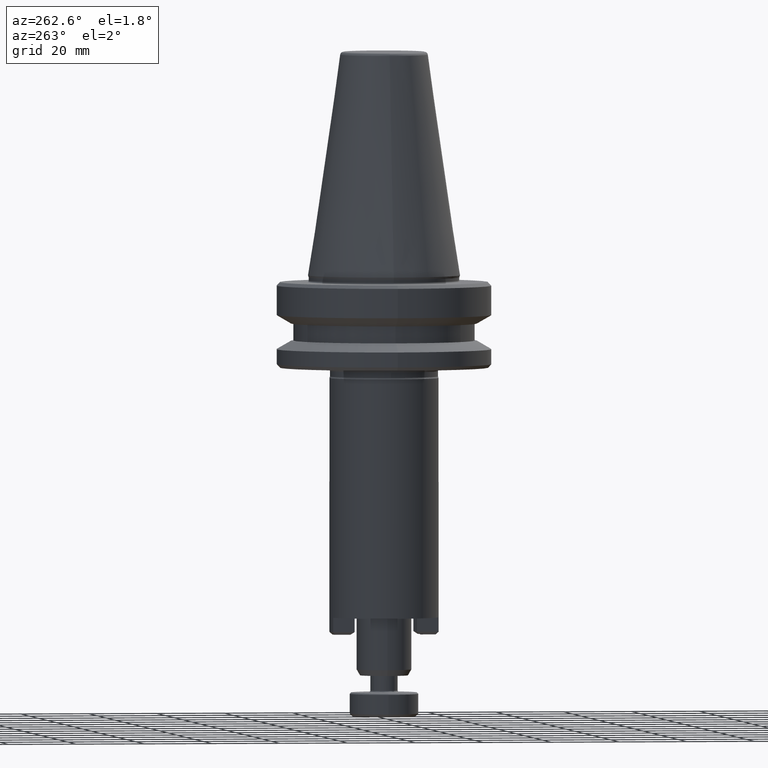
[diagram: clean part render]
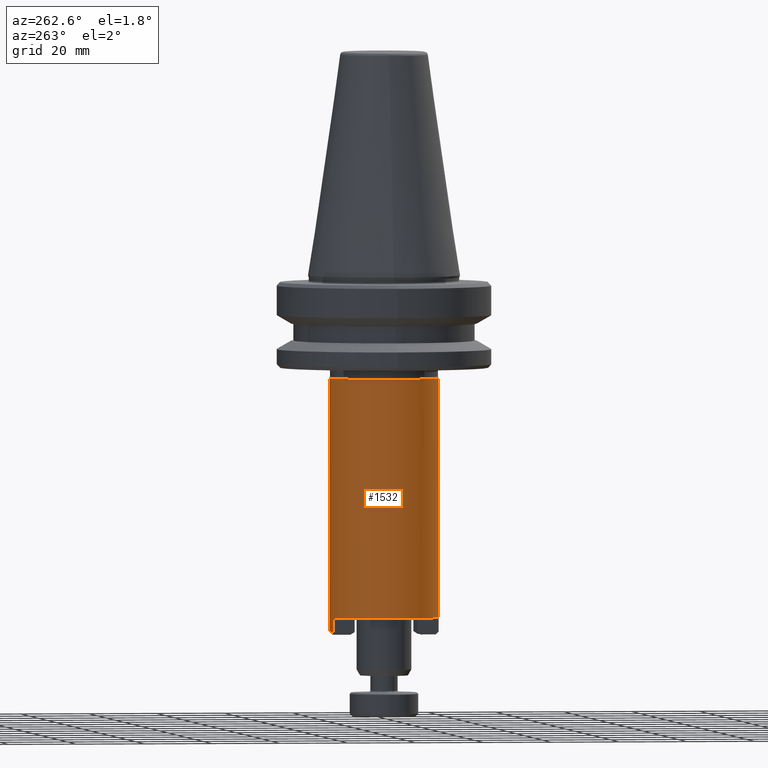
[diagram: same view with one face highlighted and labeled with its STEP entity id]
A machine part, auxiliary view. The second image highlights one B-rep face of the part: STEP entity #1532.
In plain terms, the highlighted cylindrical surface (partial cylindrical patch) has radius 16 mm, axis along (0, -0, 1).
Its self-contained STEP definition (entity closure, byte-faithful):
#3 = AXIS2_PLACEMENT_3D ( 'NONE', #630, #1685, #1857 ) ;
#37 = DIRECTION ( 'NONE',  ( 0.0000000000000000000, -2.710505431213761100E-017, 1.000000000000000000 ) ) ;
#129 = DIRECTION ( 'NONE',  ( 0.0000000000000000000, -2.710505431213761100E-017, 1.000000000000000000 ) ) ;
#171 = DIRECTION ( 'NONE',  ( 0.0000000000000000000, -2.710505431213761100E-017, 1.000000000000000000 ) ) ;
#238 = CARTESIAN_POINT ( 'NONE',  ( 103.6964639303010100, 94.66943449996901400, 23.16104099501840000 ) ) ;
#325 = VERTEX_POINT ( 'NONE', #1818 ) ;
#328 = VECTOR ( 'NONE', #1235, 1000.000000000000000 ) ;
#361 = EDGE_CURVE ( 'NONE', #1971, #2012, #1680, .T. ) ;
#486 = ORIENTED_EDGE ( 'NONE', *, *, #818, .T. ) ;
#494 = LINE ( 'NONE', #2235, #1491 ) ;
#527 = EDGE_CURVE ( 'NONE', #1659, #325, #923, .T. ) ;
#555 = AXIS2_PLACEMENT_3D ( 'NONE', #2122, #1234, #2207 ) ;
#598 = CIRCLE ( 'NONE', #1578, 16.00000000000000000 ) ;
#603 = ORIENTED_EDGE ( 'NONE', *, *, #877, .T. ) ;
#626 = CARTESIAN_POINT ( 'NONE',  ( 99.69646392975778300, 95.17750111509765500, 23.16104099519457900 ) ) ;
#630 = CARTESIAN_POINT ( 'NONE',  ( 103.6964639303010100, 110.6694344999690100, 27.36104099901840300 ) ) ;
#634 = VERTEX_POINT ( 'NONE', #1400 ) ;
#678 = DIRECTION ( 'NONE',  ( -0.0000000000000000000, 2.710505431213761100E-017, -1.000000000000000000 ) ) ;
#693 = CARTESIAN_POINT ( 'NONE',  ( 103.6964639303010100, 110.6694344999690100, 97.36104099501800100 ) ) ;
#724 = CARTESIAN_POINT ( 'NONE',  ( 99.69646392930266600, 95.17750111539712100, 27.36104099901839600 ) ) ;
#732 = FACE_OUTER_BOUND ( 'NONE', #1717, .T. ) ;
#759 = EDGE_CURVE ( 'NONE', #1269, #1659, #819, .T. ) ;
#776 = VECTOR ( 'NONE', #37, 1000.000000000000000 ) ;
#784 = CARTESIAN_POINT ( 'NONE',  ( 103.6964639303010100, 110.6694344999690100, 23.16104099501840400 ) ) ;
#818 = EDGE_CURVE ( 'NONE', #634, #2270, #2124, .T. ) ;
#819 = LINE ( 'NONE', #1798, #776 ) ;
#875 = CARTESIAN_POINT ( 'NONE',  ( 99.69646392964712300, 126.1613678846298700, 23.16104099501840400 ) ) ;
#877 = EDGE_CURVE ( 'NONE', #1480, #1971, #598, .T. ) ;
#923 = CIRCLE ( 'NONE', #1991, 16.00000000000001400 ) ;
#987 = DIRECTION ( 'NONE',  ( 0.0000000000000000000, -1.000000000000000000, 0.0000000000000000000 ) ) ;
#995 = DIRECTION ( 'NONE',  ( 0.0000000000000000000, -2.710505431213761100E-017, 1.000000000000000000 ) ) ;
#1047 = DIRECTION ( 'NONE',  ( -0.0000000000000000000, -0.0000000000000000000, 1.000000000000000000 ) ) ;
#1098 = EDGE_CURVE ( 'NONE', #1842, #634, #1669, .T. ) ;
#1124 = ORIENTED_EDGE ( 'NONE', *, *, #1603, .T. ) ;
#1199 = CARTESIAN_POINT ( 'NONE',  ( 103.6964639303010100, 126.6694344999690400, 97.36104099501800100 ) ) ;
#1210 = VECTOR ( 'NONE', #129, 1000.000000000000000 ) ;
#1234 = DIRECTION ( 'NONE',  ( -0.0000000000000000000, -0.0000000000000000000, 1.000000000000000000 ) ) ;
#1235 = DIRECTION ( 'NONE',  ( 0.0000000000000000000, -2.710505431213761100E-017, 1.000000000000000000 ) ) ;
#1269 = VERTEX_POINT ( 'NONE', #1649 ) ;
#1296 = ORIENTED_EDGE ( 'NONE', *, *, #1871, .F. ) ;
#1316 = ORIENTED_EDGE ( 'NONE', *, *, #361, .T. ) ;
#1346 = CARTESIAN_POINT ( 'NONE',  ( 103.6964639303010100, 110.6694344999690100, 23.16104099501840000 ) ) ;
#1352 = ORIENTED_EDGE ( 'NONE', *, *, #759, .F. ) ;
#1400 = CARTESIAN_POINT ( 'NONE',  ( 99.69646392997408700, 126.1613678847142700, 27.36104099901839600 ) ) ;
#1434 = DIRECTION ( 'NONE',  ( 0.0000000000000000000, -1.000000000000000000, 0.0000000000000000000 ) ) ;
#1465 = CIRCLE ( 'NONE', #555, 16.00000000000001400 ) ;
#1480 = VERTEX_POINT ( 'NONE', #626 ) ;
#1491 = VECTOR ( 'NONE', #678, 1000.000000000000000 ) ;
#1532 = ADVANCED_FACE ( 'NONE', ( #732 ), #1547, .T. ) ;
#1547 = CYLINDRICAL_SURFACE ( 'NONE', #1863, 16.00000000000000000 ) ;
#1578 = AXIS2_PLACEMENT_3D ( 'NONE', #2068, #995, #2240 ) ;
#1603 = EDGE_CURVE ( 'NONE', #2270, #1480, #494, .T. ) ;
#1649 = CARTESIAN_POINT ( 'NONE',  ( 103.6964639303010100, 126.6694344999690400, 23.16104099501840000 ) ) ;
#1659 = VERTEX_POINT ( 'NONE', #1199 ) ;
#1669 = LINE ( 'NONE', #875, #328 ) ;
#1680 = LINE ( 'NONE', #1947, #1210 ) ;
#1682 = DIRECTION ( 'NONE',  ( 0.0000000000000000000, -2.710505431213761100E-017, 1.000000000000000000 ) ) ;
#1685 = DIRECTION ( 'NONE',  ( 0.0000000000000000000, -2.710505431213761100E-017, 1.000000000000000000 ) ) ;
#1701 = CIRCLE ( 'NONE', #2175, 16.00000000000000000 ) ;
#1717 = EDGE_LOOP ( 'NONE', ( #1352, #1997, #2077, #486, #1124, #603, #1316, #1296, #2034 ) ) ;
#1726 = CARTESIAN_POINT ( 'NONE',  ( 99.69646393001549700, 126.1613678845538400, 23.16104099485270100 ) ) ;
#1798 = CARTESIAN_POINT ( 'NONE',  ( 103.6964639303010100, 126.6694344999690400, 23.16104099501840400 ) ) ;
#1818 = CARTESIAN_POINT ( 'NONE',  ( 87.69646393030099300, 110.6694344999690100, 97.36104099501800100 ) ) ;
#1842 = VERTEX_POINT ( 'NONE', #1726 ) ;
#1857 = DIRECTION ( 'NONE',  ( 0.0000000000000000000, -1.000000000000000000, 0.0000000000000000000 ) ) ;
#1863 = AXIS2_PLACEMENT_3D ( 'NONE', #784, #171, #1434 ) ;
#1871 = EDGE_CURVE ( 'NONE', #325, #2012, #1465, .T. ) ;
#1894 = CARTESIAN_POINT ( 'NONE',  ( 103.6964639303010100, 94.66943449996901400, 97.36104099501800100 ) ) ;
#1916 = DIRECTION ( 'NONE',  ( -1.000000000000000000, 0.0000000000000000000, 0.0000000000000000000 ) ) ;
#1947 = CARTESIAN_POINT ( 'NONE',  ( 103.6964639303010100, 94.66943449996901400, 23.16104099501840400 ) ) ;
#1971 = VERTEX_POINT ( 'NONE', #238 ) ;
#1991 = AXIS2_PLACEMENT_3D ( 'NONE', #693, #1047, #1916 ) ;
#1997 = ORIENTED_EDGE ( 'NONE', *, *, #2283, .T. ) ;
#2012 = VERTEX_POINT ( 'NONE', #1894 ) ;
#2034 = ORIENTED_EDGE ( 'NONE', *, *, #527, .F. ) ;
#2068 = CARTESIAN_POINT ( 'NONE',  ( 103.6964639303010100, 110.6694344999690100, 23.16104099501840000 ) ) ;
#2077 = ORIENTED_EDGE ( 'NONE', *, *, #1098, .T. ) ;
#2122 = CARTESIAN_POINT ( 'NONE',  ( 103.6964639303010100, 110.6694344999690100, 97.36104099501800100 ) ) ;
#2124 = CIRCLE ( 'NONE', #3, 16.00000000000000000 ) ;
#2175 = AXIS2_PLACEMENT_3D ( 'NONE', #1346, #1682, #987 ) ;
#2207 = DIRECTION ( 'NONE',  ( -1.000000000000000000, 0.0000000000000000000, 0.0000000000000000000 ) ) ;
#2235 = CARTESIAN_POINT ( 'NONE',  ( 99.69646392930266600, 95.17750111539712100, 23.16104099501840400 ) ) ;
#2240 = DIRECTION ( 'NONE',  ( 0.0000000000000000000, -1.000000000000000000, 0.0000000000000000000 ) ) ;
#2270 = VERTEX_POINT ( 'NONE', #724 ) ;
#2283 = EDGE_CURVE ( 'NONE', #1269, #1842, #1701, .T. ) ;